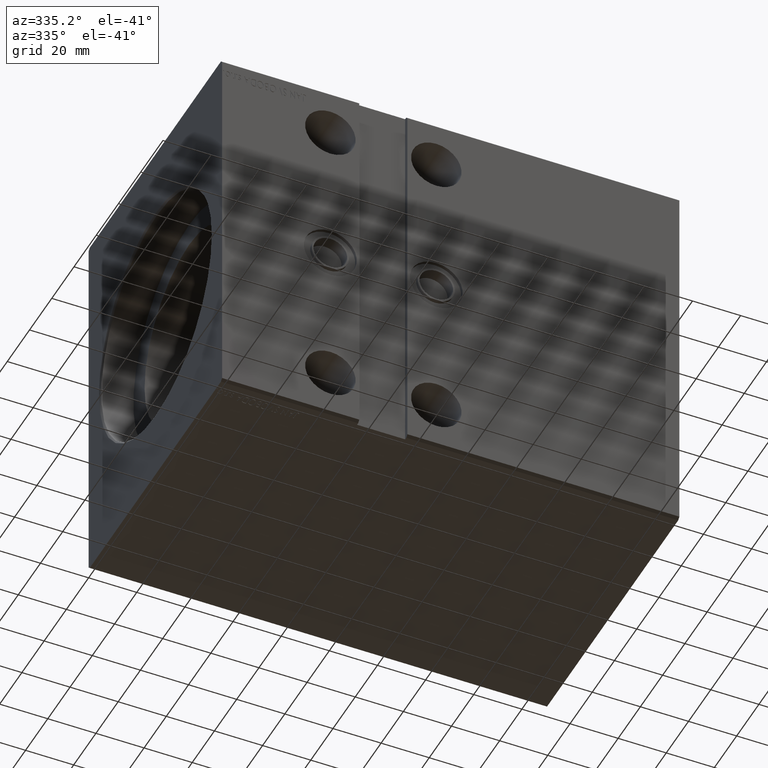
[diagram: clean part render]
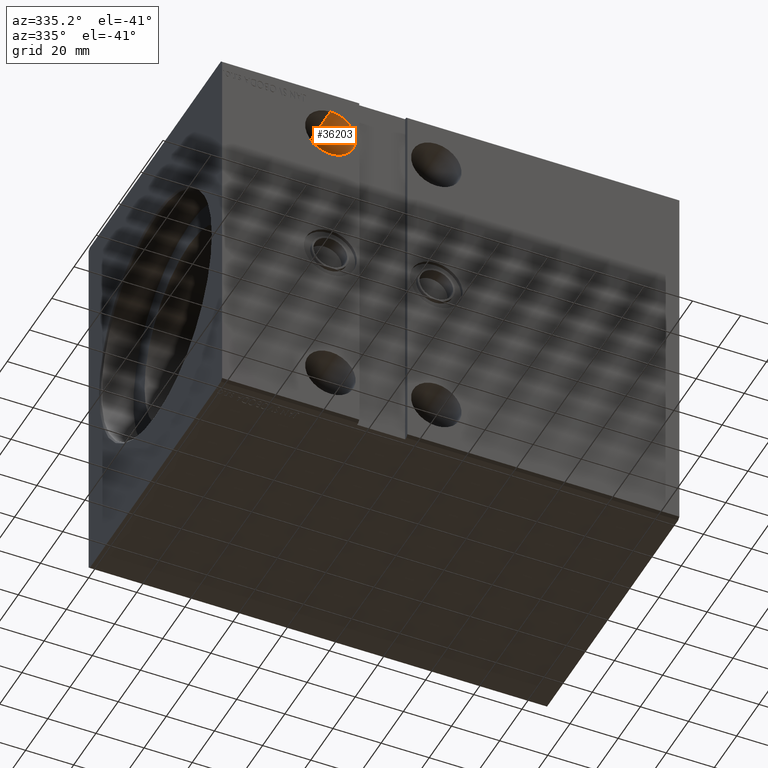
[diagram: same view with one face highlighted and labeled with its STEP entity id]
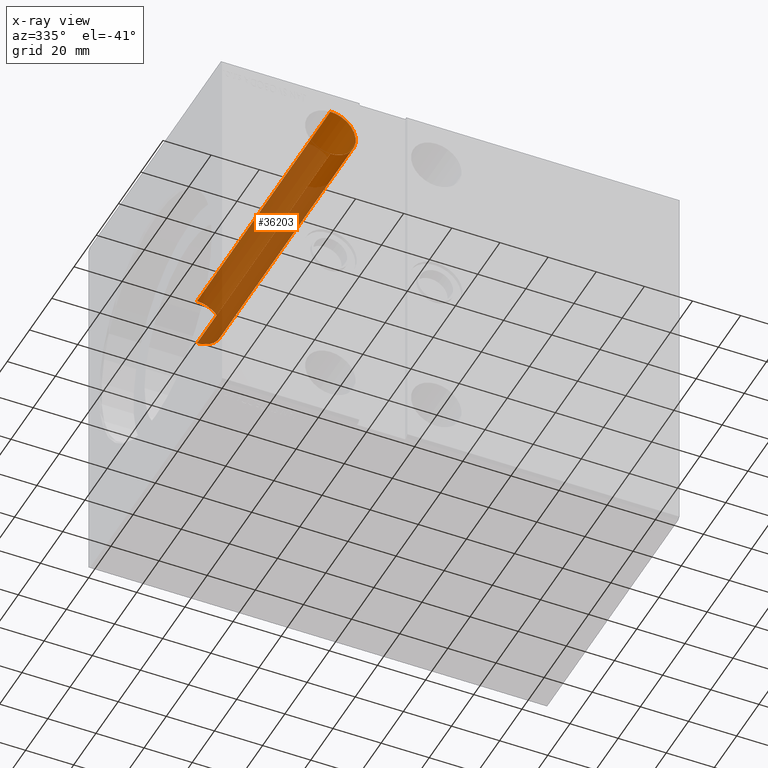
[diagram: x-ray of the same camera — body ghosted, the highlighted face saturated]
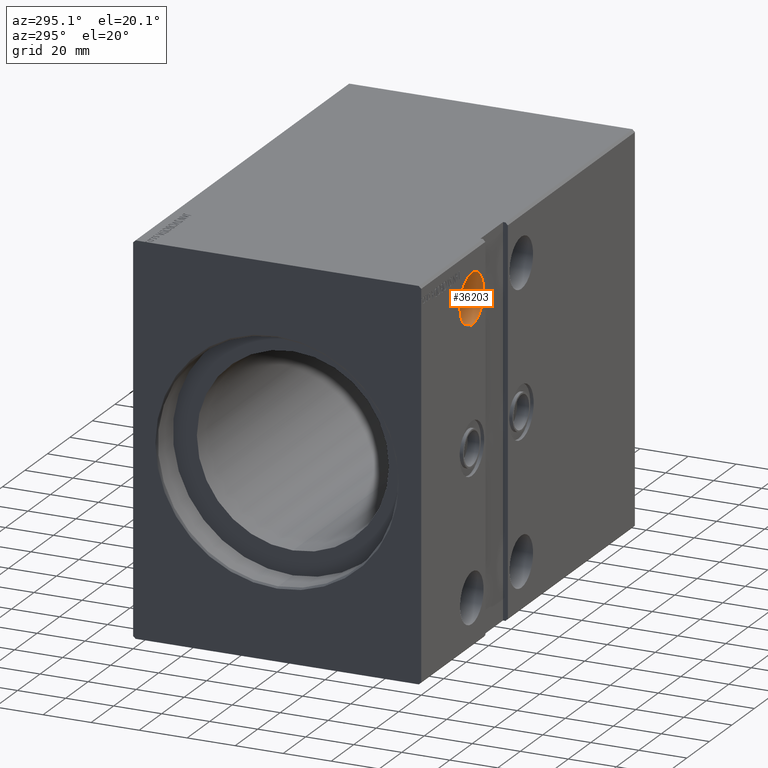
[diagram: same view with one face highlighted and labeled with its STEP entity id]
A machine part, auxiliary view. The second image highlights one B-rep face of the part: STEP entity #36203.
The next image is the same camera in x-ray: the body ghosted, the highlighted face saturated — about 80% of this face is hidden behind the body in this view.
A second angle (auxiliary view) of the same face is appended — the face is thin or edge-on in the first view.
In plain terms, the highlighted cylindrical surface (edge-blend (fillet) strip) has radius 10.5 mm, axis along (-0, -1, -0).
Its self-contained STEP definition (entity closure, byte-faithful):
#466 = LINE ( 'NONE', #39993, #41737 ) ;
#2597 = ORIENTED_EDGE ( 'NONE', *, *, #18284, .T. ) ;
#3636 = CYLINDRICAL_SURFACE ( 'NONE', #4435, 10.49999999999999467 ) ;
#3742 = CIRCLE ( 'NONE', #21399, 10.49999999999999467 ) ;
#4069 = DIRECTION ( 'NONE',  ( -0.000000000000000000, -1.000000000000000000, -5.507058653894625237E-17 ) ) ;
#4264 = DIRECTION ( 'NONE',  ( 0.000000000000000000, 0.000000000000000000, -1.000000000000000000 ) ) ;
#4435 = AXIS2_PLACEMENT_3D ( 'NONE', #22139, #20409, #4264 ) ;
#5146 = CIRCLE ( 'NONE', #32972, 10.49999999999999467 ) ;
#5512 = CARTESIAN_POINT ( 'NONE',  ( 45.00000000000000711, 60.00000000000003553, 59.99999999999999289 ) ) ;
#5801 = CARTESIAN_POINT ( 'NONE',  ( 45.00000000000000711, 60.00000000000003553, 70.50000000000000000 ) ) ;
#6817 = FACE_OUTER_BOUND ( 'NONE', #16340, .T. ) ;
#10238 = VERTEX_POINT ( 'NONE', #11694 ) ;
#11694 = CARTESIAN_POINT ( 'NONE',  ( 45.00000000000000711, -60.00000000000002132, 49.49999999999998579 ) ) ;
#13591 = VERTEX_POINT ( 'NONE', #18568 ) ;
#14399 = VERTEX_POINT ( 'NONE', #5801 ) ;
#16065 = CARTESIAN_POINT ( 'NONE',  ( 45.00000000000000711, -60.00000000000002132, 70.49999999999998579 ) ) ;
#16169 = CARTESIAN_POINT ( 'NONE',  ( 45.00000000000000711, 60.00000000000003553, 49.49999999999999289 ) ) ;
#16340 = EDGE_LOOP ( 'NONE', ( #21356, #25983, #2597, #17745 ) ) ;
#16796 = VECTOR ( 'NONE', #26348, 1000.000000000000000 ) ;
#17745 = ORIENTED_EDGE ( 'NONE', *, *, #30007, .F. ) ;
#18284 = EDGE_CURVE ( 'NONE', #13591, #10238, #35511, .T. ) ;
#18568 = CARTESIAN_POINT ( 'NONE',  ( 45.00000000000000711, 60.00000000000003553, 49.49999999999999289 ) ) ;
#20409 = DIRECTION ( 'NONE',  ( -0.000000000000000000, -1.000000000000000000, -5.507058653894625237E-17 ) ) ;
#21356 = ORIENTED_EDGE ( 'NONE', *, *, #29510, .F. ) ;
#21399 = AXIS2_PLACEMENT_3D ( 'NONE', #25393, #23051, #29198 ) ;
#22139 = CARTESIAN_POINT ( 'NONE',  ( 45.00000000000000711, 60.00000000000003553, 59.99999999999999289 ) ) ;
#23051 = DIRECTION ( 'NONE',  ( -0.000000000000000000, 1.000000000000000000, 1.317511500741879171E-16 ) ) ;
#25393 = CARTESIAN_POINT ( 'NONE',  ( 45.00000000000000711, -60.00000000000002132, 59.99999999999998579 ) ) ;
#25983 = ORIENTED_EDGE ( 'NONE', *, *, #32253, .F. ) ;
#26348 = DIRECTION ( 'NONE',  ( -0.000000000000000000, -1.000000000000000000, -5.507058653894625237E-17 ) ) ;
#29198 = DIRECTION ( 'NONE',  ( 0.000000000000000000, 0.000000000000000000, 1.000000000000000000 ) ) ;
#29510 = EDGE_CURVE ( 'NONE', #14399, #41806, #466, .T. ) ;
#30007 = EDGE_CURVE ( 'NONE', #41806, #10238, #3742, .T. ) ;
#31006 = DIRECTION ( 'NONE',  ( 0.000000000000000000, 0.000000000000000000, -1.000000000000000000 ) ) ;
#31216 = DIRECTION ( 'NONE',  ( 0.000000000000000000, -1.000000000000000000, -5.507058653894625853E-17 ) ) ;
#32253 = EDGE_CURVE ( 'NONE', #13591, #14399, #5146, .T. ) ;
#32972 = AXIS2_PLACEMENT_3D ( 'NONE', #5512, #31216, #31006 ) ;
#35511 = LINE ( 'NONE', #16169, #16796 ) ;
#36203 = ADVANCED_FACE ( 'NONE', ( #6817 ), #3636, .F. ) ;
#39993 = CARTESIAN_POINT ( 'NONE',  ( 45.00000000000000711, 60.00000000000003553, 70.50000000000000000 ) ) ;
#41737 = VECTOR ( 'NONE', #4069, 1000.000000000000000 ) ;
#41806 = VERTEX_POINT ( 'NONE', #16065 ) ;